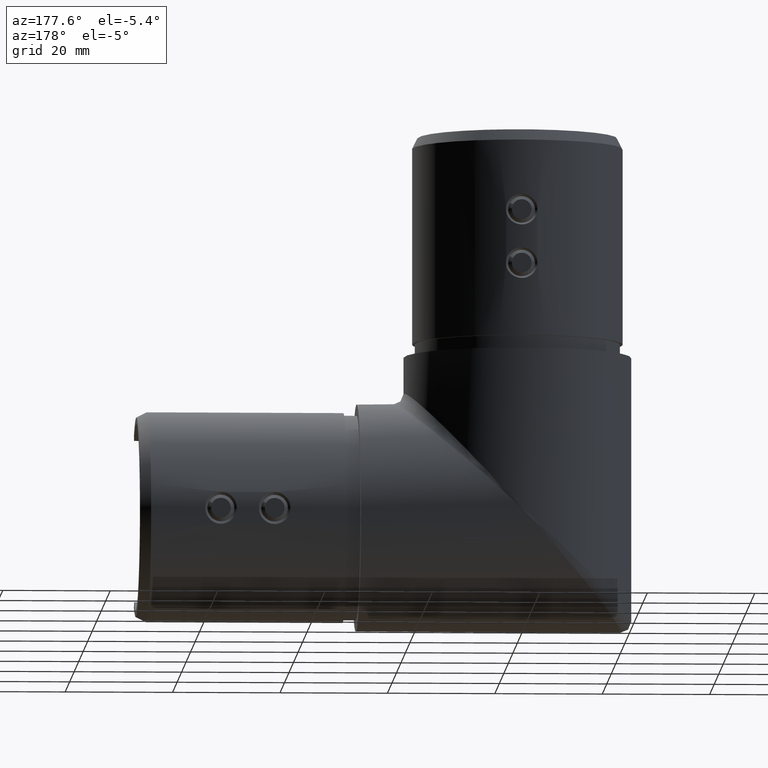
[diagram: clean part render]
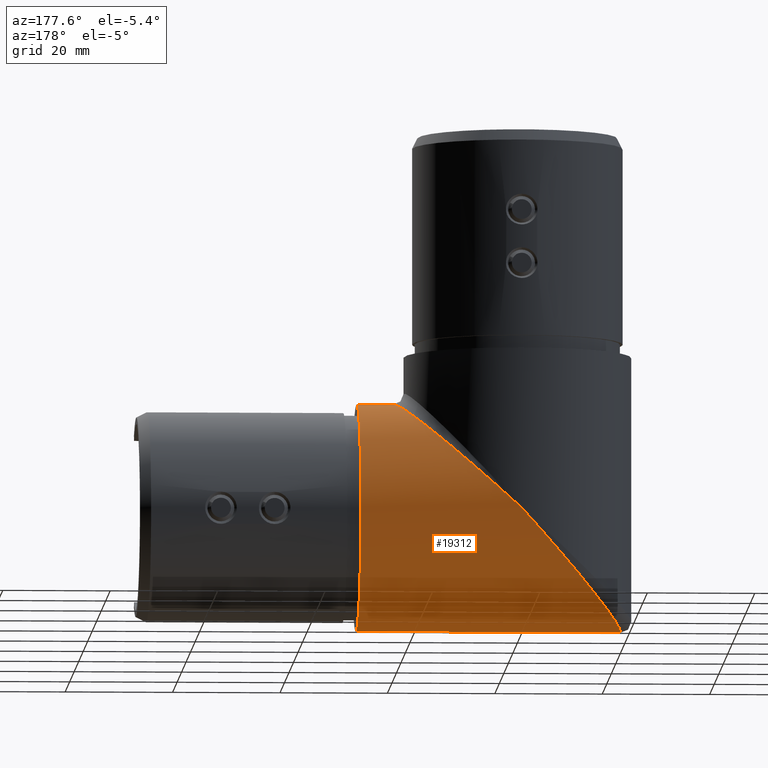
[diagram: same view with one face highlighted and labeled with its STEP entity id]
A machine part, auxiliary view. The second image highlights one B-rep face of the part: STEP entity #19312.
In plain terms, the highlighted cylindrical surface (partial cylindrical patch) has radius 21.2 mm, axis along (1, 0, 0).
Its self-contained STEP definition (entity closure, byte-faithful):
#1628 = EDGE_LOOP ( 'NONE', ( #20280, #13713, #16622, #15963, #6863 ) ) ;
#2090 = CIRCLE ( 'NONE', #13994, 21.20000000000000300 ) ;
#2232 = DIRECTION ( 'NONE',  ( -1.000000000000000000, -0.0000000000000000000, -0.0000000000000000000 ) ) ;
#3099 = CARTESIAN_POINT ( 'NONE',  ( 23.19999999999999900, 2.596251214192388800E-015, 21.20000000000000300 ) ) ;
#3114 = CARTESIAN_POINT ( 'NONE',  ( 23.20000000000000300, 12.41867247769038600, 21.19999999999999900 ) ) ;
#3402 = VERTEX_POINT ( 'NONE', #4916 ) ;
#4733 = CARTESIAN_POINT ( 'NONE',  ( 30.00000000000000000, 2.596251214192388800E-015, 21.20000000000000300 ) ) ;
#4916 = CARTESIAN_POINT ( 'NONE',  ( -19.19999999999999600, 0.0000000000000000000, -21.20000000000000300 ) ) ;
#6404 = EDGE_CURVE ( 'NONE', #3402, #14620, #11730, .T. ) ;
#6617 = CARTESIAN_POINT ( 'NONE',  ( -3.894376821288583500E-015, 21.20000000000000600, -3.894376821288583500E-015 ) ) ;
#6863 = ORIENTED_EDGE ( 'NONE', *, *, #17262, .T. ) ;
#8024 = VECTOR ( 'NONE', #15861, 1000.000000000000000 ) ;
#9535 = CARTESIAN_POINT ( 'NONE',  ( -3.894376821288583500E-015, 21.20000000000000600, -3.894376821288583500E-015 ) ) ;
#9706 = CARTESIAN_POINT ( 'NONE',  ( 0.0000000000000000000, 0.0000000000000000000, -21.20000000000000300 ) ) ;
#10559 = CYLINDRICAL_SURFACE ( 'NONE', #19784, 21.20000000000000300 ) ;
#11155 = VECTOR ( 'NONE', #19009, 1000.000000000000000 ) ;
#11400 = VERTEX_POINT ( 'NONE', #6617 ) ;
#11642 =( BOUNDED_CURVE ( )  B_SPLINE_CURVE ( 3, ( #15504, #18725, #3114, #17078 ),
 .UNSPECIFIED., .F., .F. ) 
 B_SPLINE_CURVE_WITH_KNOTS ( ( 4, 4 ),
 ( 4.712388980384689700, 6.283185307179586200 ),
 .UNSPECIFIED. ) 
 CURVE ( )  GEOMETRIC_REPRESENTATION_ITEM ( )  RATIONAL_B_SPLINE_CURVE ( ( 1.000000000000000000, 0.8047378541243649400, 0.8047378541243649400, 1.000000000000000000 ) ) 
 REPRESENTATION_ITEM ( '' )  );
#11730 = LINE ( 'NONE', #9706, #8024 ) ;
#12192 = VERTEX_POINT ( 'NONE', #4733 ) ;
#12233 = CARTESIAN_POINT ( 'NONE',  ( -19.19999999999999900, 12.41867247769038600, -21.19999999999999900 ) ) ;
#12499 = DIRECTION ( 'NONE',  ( 1.000000000000000000, 0.0000000000000000000, 0.0000000000000000000 ) ) ;
#13092 = VERTEX_POINT ( 'NONE', #3099 ) ;
#13195 = DIRECTION ( 'NONE',  ( 0.0000000000000000000, 0.0000000000000000000, -1.000000000000000000 ) ) ;
#13713 = ORIENTED_EDGE ( 'NONE', *, *, #16226, .T. ) ;
#13945 = CARTESIAN_POINT ( 'NONE',  ( 0.0000000000000000000, 0.0000000000000000000, 0.0000000000000000000 ) ) ;
#13994 = AXIS2_PLACEMENT_3D ( 'NONE', #17903, #2232, #13195 ) ;
#14094 = LINE ( 'NONE', #17349, #11155 ) ;
#14223 = DIRECTION ( 'NONE',  ( 0.0000000000000000000, 0.0000000000000000000, -1.000000000000000000 ) ) ;
#14620 = VERTEX_POINT ( 'NONE', #16153 ) ;
#14744 = FACE_OUTER_BOUND ( 'NONE', #1628, .T. ) ;
#15504 = CARTESIAN_POINT ( 'NONE',  ( -3.894376821288583500E-015, 21.20000000000000600, -3.894376821288583500E-015 ) ) ;
#15635 = CARTESIAN_POINT ( 'NONE',  ( -11.24709960243657700, 21.19999999999999200, -12.41867247769039100 ) ) ;
#15861 = DIRECTION ( 'NONE',  ( 1.000000000000000000, 0.0000000000000000000, 0.0000000000000000000 ) ) ;
#15963 = ORIENTED_EDGE ( 'NONE', *, *, #6404, .F. ) ;
#16153 = CARTESIAN_POINT ( 'NONE',  ( 30.00000000000000000, 0.0000000000000000000, -21.20000000000000300 ) ) ;
#16226 = EDGE_CURVE ( 'NONE', #13092, #12192, #14094, .T. ) ;
#16276 = EDGE_CURVE ( 'NONE', #12192, #14620, #2090, .T. ) ;
#16622 = ORIENTED_EDGE ( 'NONE', *, *, #16276, .T. ) ;
#17078 = CARTESIAN_POINT ( 'NONE',  ( 23.19999999999999900, 2.596251214192388800E-015, 21.20000000000000300 ) ) ;
#17191 = EDGE_CURVE ( 'NONE', #11400, #13092, #11642, .T. ) ;
#17262 = EDGE_CURVE ( 'NONE', #3402, #11400, #19310, .T. ) ;
#17349 = CARTESIAN_POINT ( 'NONE',  ( 0.0000000000000000000, 2.596251214192388800E-015, 21.20000000000000300 ) ) ;
#17903 = CARTESIAN_POINT ( 'NONE',  ( 30.00000000000000000, 0.0000000000000000000, 0.0000000000000000000 ) ) ;
#18464 = CARTESIAN_POINT ( 'NONE',  ( -19.19999999999999600, 0.0000000000000000000, -21.20000000000000300 ) ) ;
#18725 = CARTESIAN_POINT ( 'NONE',  ( 13.59024535294419200, 21.19999999999999900, 12.41867247769038200 ) ) ;
#19009 = DIRECTION ( 'NONE',  ( 1.000000000000000000, 0.0000000000000000000, 0.0000000000000000000 ) ) ;
#19310 =( BOUNDED_CURVE ( )  B_SPLINE_CURVE ( 3, ( #18464, #12233, #15635, #9535 ),
 .UNSPECIFIED., .F., .T. ) 
 B_SPLINE_CURVE_WITH_KNOTS ( ( 4, 4 ),
 ( 3.141592653589793100, 4.712388980384689700 ),
 .UNSPECIFIED. ) 
 CURVE ( )  GEOMETRIC_REPRESENTATION_ITEM ( )  RATIONAL_B_SPLINE_CURVE ( ( 1.000000000000000000, 0.8047378541243649400, 0.8047378541243649400, 1.000000000000000000 ) ) 
 REPRESENTATION_ITEM ( '' )  );
#19312 = ADVANCED_FACE ( 'NONE', ( #14744 ), #10559, .T. ) ;
#19784 = AXIS2_PLACEMENT_3D ( 'NONE', #13945, #12499, #14223 ) ;
#20280 = ORIENTED_EDGE ( 'NONE', *, *, #17191, .T. ) ;